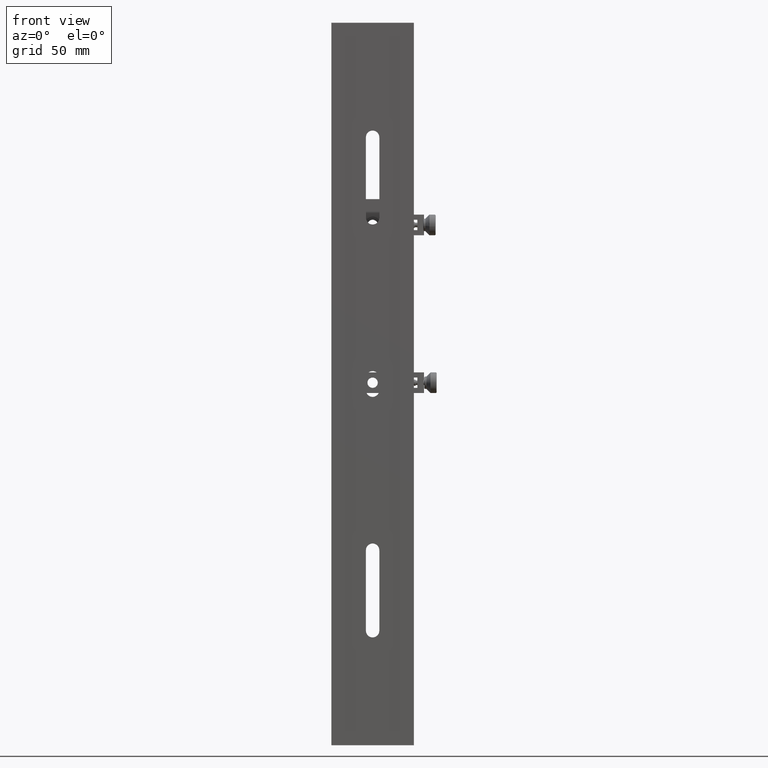
[diagram: clean part render]
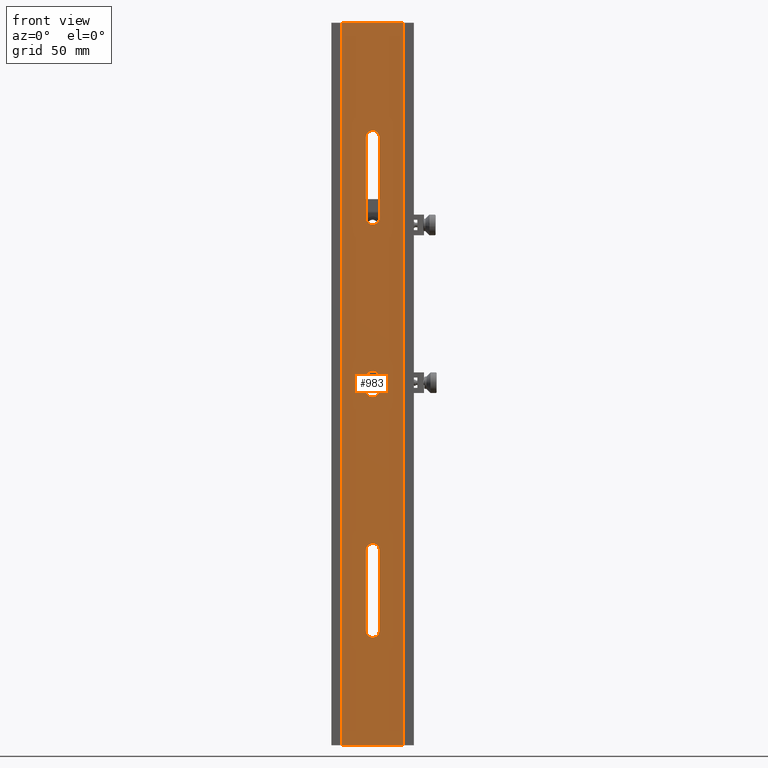
[diagram: same view with one face highlighted and labeled with its STEP entity id]
A machine part, front view. The second image highlights one B-rep face of the part: STEP entity #983.
In plain terms, the highlighted planar face has unit normal (0, -1, 0).
Its self-contained STEP definition (entity closure, byte-faithful):
#131 = CARTESIAN_POINT ( 'NONE',  ( -3.582091887506006239E-15, -5.999999999999996447, -119.5000000000000000 ) ) ;
#132 = ORIENTED_EDGE ( 'NONE', *, *, #2925, .F. ) ;
#136 = CARTESIAN_POINT ( 'NONE',  ( 3.250000000000015099, -5.999999999999996447, -5.970153145843374957E-16 ) ) ;
#199 = LINE ( 'NONE', #4540, #1677 ) ;
#214 = ORIENTED_EDGE ( 'NONE', *, *, #484, .F. ) ;
#251 = CARTESIAN_POINT ( 'NONE',  ( -3.249999999999994227, -5.999999999999996447, 119.5000000000000000 ) ) ;
#286 = CIRCLE ( 'NONE', #4601, 3.249999999999997780 ) ;
#388 = ORIENTED_EDGE ( 'NONE', *, *, #5893, .T. ) ;
#403 = FACE_BOUND ( 'NONE', #5034, .T. ) ;
#407 = ORIENTED_EDGE ( 'NONE', *, *, #2575, .F. ) ;
#424 = VERTEX_POINT ( 'NONE', #5227 ) ;
#484 = EDGE_CURVE ( 'NONE', #5428, #424, #1963, .T. ) ;
#502 = ORIENTED_EDGE ( 'NONE', *, *, #4035, .T. ) ;
#605 = DIRECTION ( 'NONE',  ( -1.836970198721029934E-16, -0.000000000000000000, -1.000000000000000000 ) ) ;
#682 = CARTESIAN_POINT ( 'NONE',  ( 3.249999999999978240, -5.999999999999996447, -5.970153145843306918E-16 ) ) ;
#687 = EDGE_CURVE ( 'NONE', #5115, #6284, #3771, .T. ) ;
#696 = VERTEX_POINT ( 'NONE', #3865 ) ;
#703 = LINE ( 'NONE', #136, #4499 ) ;
#714 = AXIS2_PLACEMENT_3D ( 'NONE', #4363, #5359, #4940 ) ;
#723 = CARTESIAN_POINT ( 'NONE',  ( 3.582091887506006239E-15, -5.999999999999996447, 119.5000000000000000 ) ) ;
#730 = ORIENTED_EDGE ( 'NONE', *, *, #3102, .F. ) ;
#812 = DIRECTION ( 'NONE',  ( 1.000000000000000000, 0.000000000000000000, 0.000000000000000000 ) ) ;
#891 = DIRECTION ( 'NONE',  ( 1.000000000000000000, 0.000000000000000000, 0.000000000000000000 ) ) ;
#913 = VERTEX_POINT ( 'NONE', #6873 ) ;
#922 = CARTESIAN_POINT ( 'NONE',  ( -2.407148620655123076E-16, -5.999999999999998224, 175.0000000000000000 ) ) ;
#934 = CARTESIAN_POINT ( 'NONE',  ( -2.407148620655123076E-16, -5.999999999999998224, -175.0000000000000000 ) ) ;
#938 = VERTEX_POINT ( 'NONE', #1484 ) ;
#967 = VECTOR ( 'NONE', #4975, 1000.000000000000000 ) ;
#983 = ADVANCED_FACE ( 'NONE', ( #6223, #403, #3501, #6834 ), #6368, .T. ) ;
#1070 = CARTESIAN_POINT ( 'NONE',  ( 3.249999999999993783, -5.999999999999996447, -5.970153145843334528E-16 ) ) ;
#1126 = ORIENTED_EDGE ( 'NONE', *, *, #3475, .F. ) ;
#1132 = EDGE_LOOP ( 'NONE', ( #3173, #6832, #5040, #1262 ) ) ;
#1202 = CARTESIAN_POINT ( 'NONE',  ( -3.250000000000016431, -5.999999999999996447, 5.970153145843376929E-16 ) ) ;
#1224 = LINE ( 'NONE', #682, #1758 ) ;
#1262 = ORIENTED_EDGE ( 'NONE', *, *, #2057, .F. ) ;
#1466 = EDGE_CURVE ( 'NONE', #938, #6284, #1224, .T. ) ;
#1484 = CARTESIAN_POINT ( 'NONE',  ( 3.250000000000000444, -5.999999999999996447, 119.5000000000000000 ) ) ;
#1593 = CARTESIAN_POINT ( 'NONE',  ( 3.582091887506006239E-15, -5.999999999999996447, -80.50000000000001421 ) ) ;
#1677 = VECTOR ( 'NONE', #5181, 1000.000000000000000 ) ;
#1758 = VECTOR ( 'NONE', #605, 1000.000000000000000 ) ;
#1763 = VECTOR ( 'NONE', #1969, 1000.000000000000000 ) ;
#1783 = AXIS2_PLACEMENT_3D ( 'NONE', #1593, #5072, #6075 ) ;
#1963 = CIRCLE ( 'NONE', #4003, 3.249999999999997780 ) ;
#1969 = DIRECTION ( 'NONE',  ( 1.000000000000000000, 0.000000000000000000, 0.000000000000000000 ) ) ;
#2004 = DIRECTION ( 'NONE',  ( 1.000000000000000000, 0.000000000000000000, 0.000000000000000000 ) ) ;
#2035 = CARTESIAN_POINT ( 'NONE',  ( -3.250000000000001332, -5.999999999999996447, -119.5000000000000000 ) ) ;
#2057 = EDGE_CURVE ( 'NONE', #4308, #5115, #2264, .T. ) ;
#2096 = LINE ( 'NONE', #1070, #3344 ) ;
#2121 = AXIS2_PLACEMENT_3D ( 'NONE', #131, #6768, #5687 ) ;
#2264 = LINE ( 'NONE', #1202, #967 ) ;
#2286 = EDGE_CURVE ( 'NONE', #5572, #5183, #5553, .T. ) ;
#2367 = DIRECTION ( 'NONE',  ( 0.000000000000000000, -1.000000000000000000, 0.000000000000000000 ) ) ;
#2575 = EDGE_CURVE ( 'NONE', #6375, #2674, #3074, .T. ) ;
#2670 = DIRECTION ( 'NONE',  ( -1.836970198721029441E-16, -0.000000000000000000, -1.000000000000000000 ) ) ;
#2674 = VERTEX_POINT ( 'NONE', #2035 ) ;
#2912 = CARTESIAN_POINT ( 'NONE',  ( 3.249999999999993339, -5.999999999999996447, -119.5000000000000000 ) ) ;
#2925 = EDGE_CURVE ( 'NONE', #3822, #913, #5768, .T. ) ;
#2997 = VECTOR ( 'NONE', #6893, 1000.000000000000000 ) ;
#3032 = VECTOR ( 'NONE', #891, 1000.000000000000000 ) ;
#3074 = LINE ( 'NONE', #5242, #2997 ) ;
#3102 = EDGE_CURVE ( 'NONE', #2674, #4250, #5200, .T. ) ;
#3173 = ORIENTED_EDGE ( 'NONE', *, *, #3519, .F. ) ;
#3179 = DIRECTION ( 'NONE',  ( 0.000000000000000000, -1.000000000000000000, 0.000000000000000000 ) ) ;
#3344 = VECTOR ( 'NONE', #2670, 1000.000000000000000 ) ;
#3475 = EDGE_CURVE ( 'NONE', #5183, #5428, #4493, .T. ) ;
#3499 = CARTESIAN_POINT ( 'NONE',  ( -3.250000000000000888, -5.999999999999996447, 5.970153145843347347E-16 ) ) ;
#3501 = FACE_OUTER_BOUND ( 'NONE', #5111, .T. ) ;
#3514 = DIRECTION ( 'NONE',  ( 0.000000000000000000, -1.000000000000000000, 0.000000000000000000 ) ) ;
#3519 = EDGE_CURVE ( 'NONE', #938, #4308, #286, .T. ) ;
#3531 = CARTESIAN_POINT ( 'NONE',  ( -3.250000000000000000, -5.999999999999996447, 3.000000000000000444 ) ) ;
#3605 = DIRECTION ( 'NONE',  ( 0.000000000000000000, -1.000000000000000000, 0.000000000000000000 ) ) ;
#3628 = EDGE_CURVE ( 'NONE', #3798, #913, #6798, .T. ) ;
#3686 = EDGE_CURVE ( 'NONE', #5322, #3798, #4605, .T. ) ;
#3771 = CIRCLE ( 'NONE', #714, 3.249999999999997780 ) ;
#3798 = VERTEX_POINT ( 'NONE', #6470 ) ;
#3822 = VERTEX_POINT ( 'NONE', #6995 ) ;
#3865 = CARTESIAN_POINT ( 'NONE',  ( 3.250000000000000444, -5.999999999999996447, -80.50000000000001421 ) ) ;
#3925 = ORIENTED_EDGE ( 'NONE', *, *, #3628, .T. ) ;
#3960 = DIRECTION ( 'NONE',  ( 1.000000000000000000, 0.000000000000000000, 0.000000000000000000 ) ) ;
#3998 = ORIENTED_EDGE ( 'NONE', *, *, #3686, .T. ) ;
#4003 = AXIS2_PLACEMENT_3D ( 'NONE', #4767, #3514, #812 ) ;
#4024 = VECTOR ( 'NONE', #5000, 1000.000000000000000 ) ;
#4035 = EDGE_CURVE ( 'NONE', #5572, #424, #2096, .T. ) ;
#4138 = CARTESIAN_POINT ( 'NONE',  ( -15.00000000000003730, -5.999999999999998224, -175.0000000000000000 ) ) ;
#4250 = VERTEX_POINT ( 'NONE', #2912 ) ;
#4285 = DIRECTION ( 'NONE',  ( 1.000000000000000000, 0.000000000000000000, 0.000000000000000000 ) ) ;
#4286 = ORIENTED_EDGE ( 'NONE', *, *, #6251, .F. ) ;
#4308 = VERTEX_POINT ( 'NONE', #251 ) ;
#4363 = CARTESIAN_POINT ( 'NONE',  ( -3.582091887506006239E-15, -5.999999999999996447, 80.50000000000001421 ) ) ;
#4493 = LINE ( 'NONE', #3499, #4024 ) ;
#4499 = VECTOR ( 'NONE', #6088, 1000.000000000000000 ) ;
#4540 = CARTESIAN_POINT ( 'NONE',  ( -15.00000000000003730, -5.999999999999996447, 294.6622748219313621 ) ) ;
#4601 = AXIS2_PLACEMENT_3D ( 'NONE', #723, #2367, #3960 ) ;
#4605 = LINE ( 'NONE', #934, #1763 ) ;
#4767 = CARTESIAN_POINT ( 'NONE',  ( -3.232027340671374142E-15, -5.999999999999996447, -3.000000000000000000 ) ) ;
#4940 = DIRECTION ( 'NONE',  ( 1.000000000000000000, 0.000000000000000000, 0.000000000000000000 ) ) ;
#4963 = CIRCLE ( 'NONE', #1783, 3.249999999999997780 ) ;
#4975 = DIRECTION ( 'NONE',  ( -1.836970198721029934E-16, -0.000000000000000000, -1.000000000000000000 ) ) ;
#5000 = DIRECTION ( 'NONE',  ( -1.836970198721029441E-16, -0.000000000000000000, -1.000000000000000000 ) ) ;
#5004 = CARTESIAN_POINT ( 'NONE',  ( 3.249999999999993339, -5.999999999999996447, 80.50000000000001421 ) ) ;
#5034 = EDGE_LOOP ( 'NONE', ( #4286, #388, #730, #407 ) ) ;
#5035 = CARTESIAN_POINT ( 'NONE',  ( -3.249999999999994227, -5.999999999999996447, -80.50000000000001421 ) ) ;
#5040 = ORIENTED_EDGE ( 'NONE', *, *, #687, .F. ) ;
#5060 = VECTOR ( 'NONE', #6289, 1000.000000000000000 ) ;
#5072 = DIRECTION ( 'NONE',  ( 0.000000000000000000, -1.000000000000000000, 0.000000000000000000 ) ) ;
#5111 = EDGE_LOOP ( 'NONE', ( #5583, #3998, #3925, #132 ) ) ;
#5115 = VERTEX_POINT ( 'NONE', #5536 ) ;
#5139 = CARTESIAN_POINT ( 'NONE',  ( 0.000000000000000000, -5.999999999999996447, 0.000000000000000000 ) ) ;
#5181 = DIRECTION ( 'NONE',  ( 1.236303256585107026E-16, 0.000000000000000000, -1.000000000000000000 ) ) ;
#5183 = VERTEX_POINT ( 'NONE', #3531 ) ;
#5200 = CIRCLE ( 'NONE', #2121, 3.249999999999997780 ) ;
#5227 = CARTESIAN_POINT ( 'NONE',  ( 3.249999999999993783, -5.999999999999996447, -3.000000000000000000 ) ) ;
#5242 = CARTESIAN_POINT ( 'NONE',  ( -3.249999999999979572, -5.999999999999996447, 5.970153145843309876E-16 ) ) ;
#5266 = CARTESIAN_POINT ( 'NONE',  ( 3.249999999999994671, -5.999999999999996447, 3.000000000000000000 ) ) ;
#5322 = VERTEX_POINT ( 'NONE', #4138 ) ;
#5344 = ORIENTED_EDGE ( 'NONE', *, *, #2286, .F. ) ;
#5359 = DIRECTION ( 'NONE',  ( 0.000000000000000000, -1.000000000000000000, 0.000000000000000000 ) ) ;
#5421 = CARTESIAN_POINT ( 'NONE',  ( -2.129845221438756626E-15, -5.999999999999996447, 3.000000000000000000 ) ) ;
#5428 = VERTEX_POINT ( 'NONE', #6175 ) ;
#5536 = CARTESIAN_POINT ( 'NONE',  ( -3.250000000000001332, -5.999999999999996447, 80.50000000000001421 ) ) ;
#5553 = CIRCLE ( 'NONE', #6475, 3.249999999999997780 ) ;
#5572 = VERTEX_POINT ( 'NONE', #5266 ) ;
#5583 = ORIENTED_EDGE ( 'NONE', *, *, #6411, .T. ) ;
#5687 = DIRECTION ( 'NONE',  ( 1.000000000000000000, 0.000000000000000000, 0.000000000000000000 ) ) ;
#5768 = LINE ( 'NONE', #922, #3032 ) ;
#5893 = EDGE_CURVE ( 'NONE', #696, #4250, #703, .T. ) ;
#6075 = DIRECTION ( 'NONE',  ( 1.000000000000000000, 0.000000000000000000, 0.000000000000000000 ) ) ;
#6088 = DIRECTION ( 'NONE',  ( -1.836970198721029934E-16, -0.000000000000000000, -1.000000000000000000 ) ) ;
#6175 = CARTESIAN_POINT ( 'NONE',  ( -3.250000000000000888, -5.999999999999996447, -2.999999999999999556 ) ) ;
#6223 = FACE_BOUND ( 'NONE', #6986, .T. ) ;
#6251 = EDGE_CURVE ( 'NONE', #696, #6375, #4963, .T. ) ;
#6284 = VERTEX_POINT ( 'NONE', #5004 ) ;
#6289 = DIRECTION ( 'NONE',  ( -1.236303256585107026E-16, 0.000000000000000000, 1.000000000000000000 ) ) ;
#6366 = CARTESIAN_POINT ( 'NONE',  ( 14.99999999999996092, -5.999999999999996447, 294.6622748219313621 ) ) ;
#6368 = PLANE ( 'NONE',  #6924 ) ;
#6375 = VERTEX_POINT ( 'NONE', #5035 ) ;
#6411 = EDGE_CURVE ( 'NONE', #3822, #5322, #199, .T. ) ;
#6470 = CARTESIAN_POINT ( 'NONE',  ( 15.00000000000001776, -5.999999999999996447, -175.0000000000000000 ) ) ;
#6475 = AXIS2_PLACEMENT_3D ( 'NONE', #5421, #3179, #4285 ) ;
#6768 = DIRECTION ( 'NONE',  ( 0.000000000000000000, -1.000000000000000000, 0.000000000000000000 ) ) ;
#6798 = LINE ( 'NONE', #6366, #5060 ) ;
#6832 = ORIENTED_EDGE ( 'NONE', *, *, #1466, .T. ) ;
#6834 = FACE_BOUND ( 'NONE', #1132, .T. ) ;
#6873 = CARTESIAN_POINT ( 'NONE',  ( 14.99999999999997691, -5.999999999999996447, 175.0000000000000000 ) ) ;
#6893 = DIRECTION ( 'NONE',  ( -1.836970198721029934E-16, -0.000000000000000000, -1.000000000000000000 ) ) ;
#6924 = AXIS2_PLACEMENT_3D ( 'NONE', #5139, #3605, #2004 ) ;
#6986 = EDGE_LOOP ( 'NONE', ( #5344, #502, #214, #1126 ) ) ;
#6995 = CARTESIAN_POINT ( 'NONE',  ( -15.00000000000002132, -5.999999999999996447, 175.0000000000000000 ) ) ;